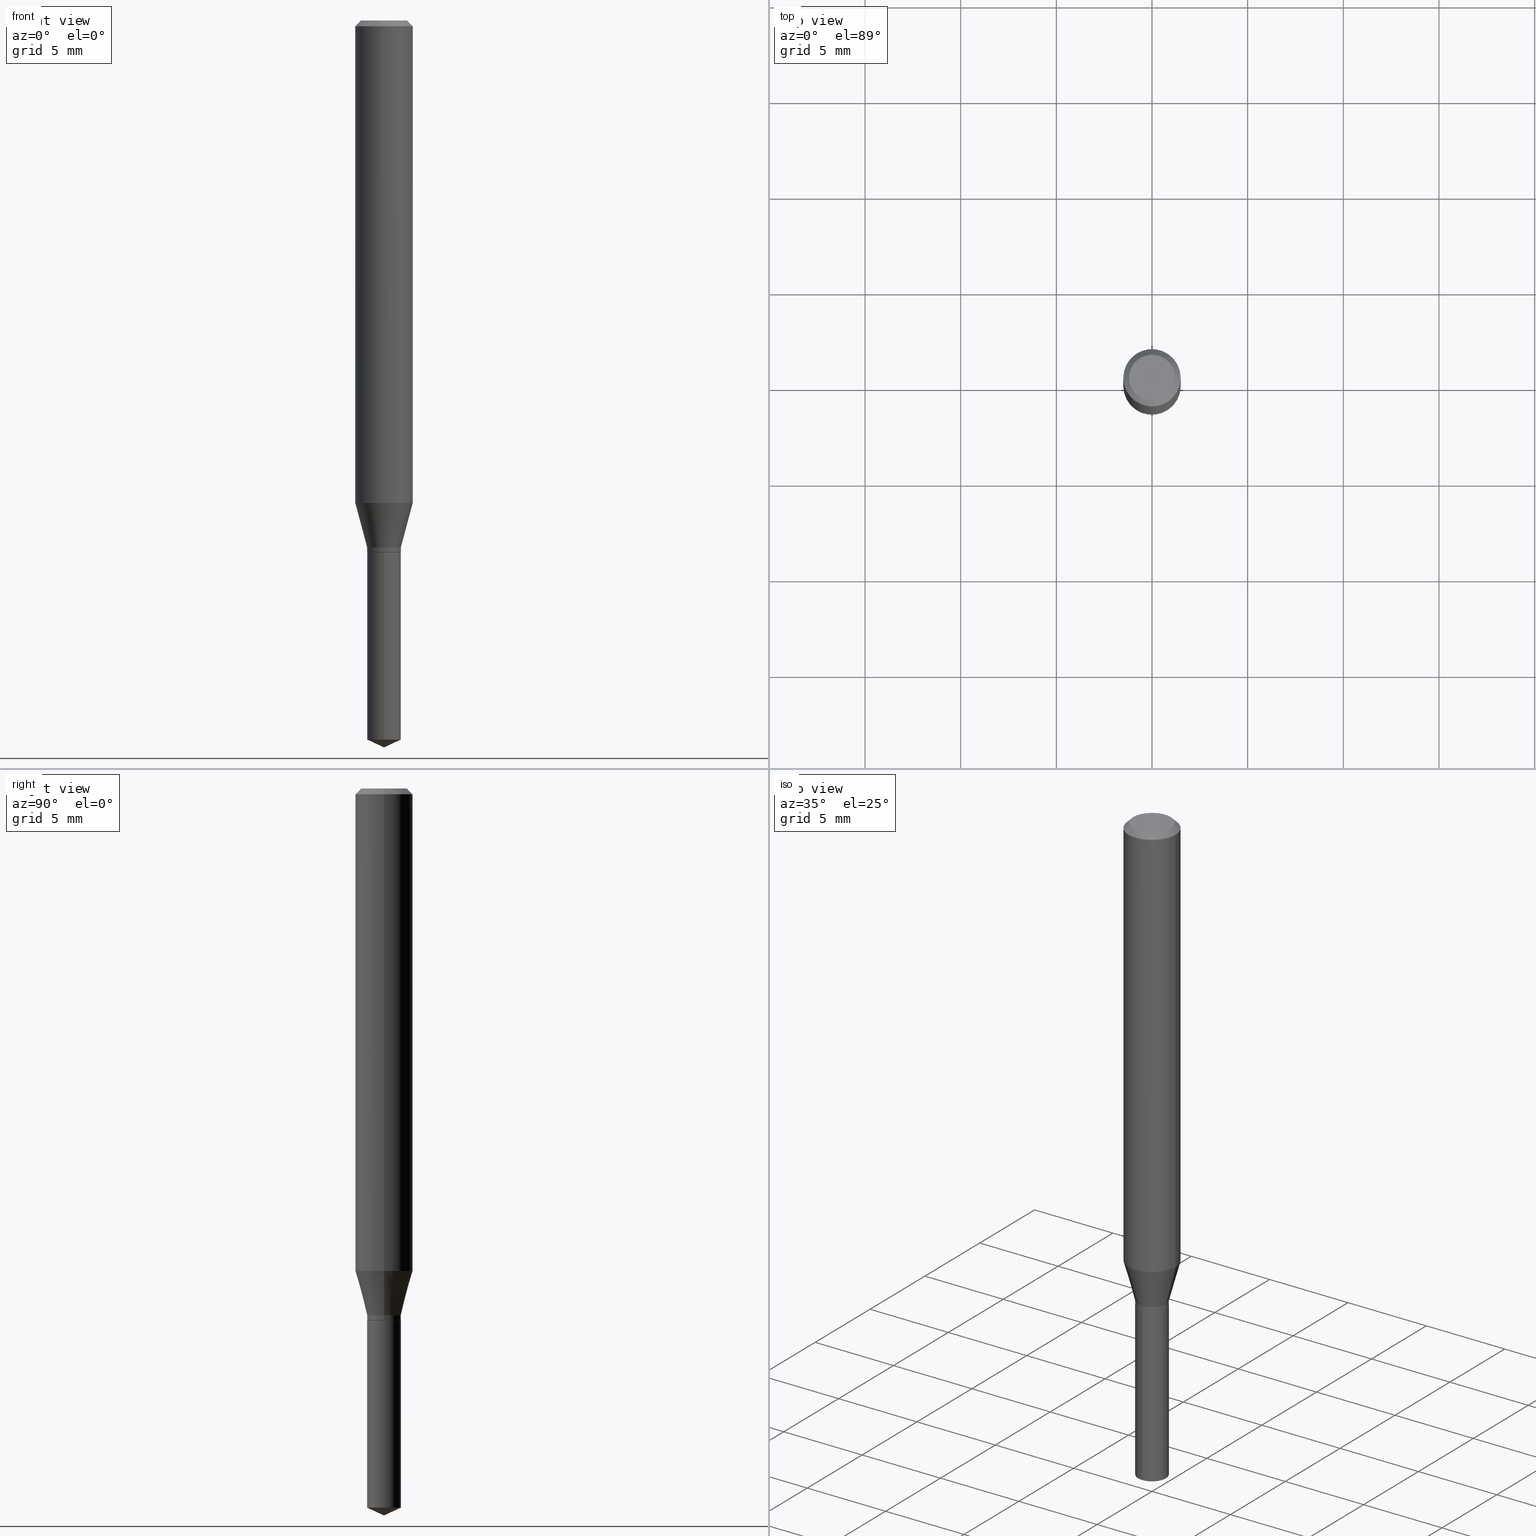
[diagram: canonical four-view strip — front | top / right | iso, engineering-drawing reading convention]
A machine part, canonical four-view strip (front | top / right | iso — engineering-drawing reading convention). The complete STEP part file that produces these views, byte-faithful:
ISO-10303-21;
HEADER;
FILE_DESCRIPTION (( 'STEP AP203' ),
    '1' );
FILE_NAME ('07572.STEP',
    '2024-04-23T23:08:33',
    ( '' ),
    ( '' ),
    'SwSTEP 2.0',
    'SolidWorks 2023',
    '' );
FILE_SCHEMA (( 'CONFIG_CONTROL_DESIGN' ));
ENDSEC;

DATA;
#1 = DIRECTION ( 'NONE',  ( 1.000000000000000000, -6.982962677686265922E-15, 4.876176775795935232E-29 ) ) ;
#2 = EDGE_CURVE ( 'NONE', #211, #374, #87, .T. ) ;
#3 = CARTESIAN_POINT ( 'NONE',  ( -0.05904999999999999832, -1.334628465406511892E-15, -0.01181000000000007218 ) ) ;
#4 = COORDINATED_UNIVERSAL_TIME_OFFSET ( 5, 0, .BEHIND. ) ;
#5 = ADVANCED_FACE ( 'NONE', ( #462 ), #370, .T. ) ;
#6 = ORIENTED_EDGE ( 'NONE', *, *, #182, .F. ) ;
#7 = PERSON_AND_ORGANIZATION ( #311, #459 ) ;
#8 = CARTESIAN_POINT ( 'NONE',  ( 8.265746106709734507E-48, -1.180129479067563789E-33, -3.380025165646692144E-19 ) ) ;
#9 = AXIS2_PLACEMENT_3D ( 'NONE', #210, #317, #471 ) ;
#10 = CONICAL_SURFACE ( 'NONE', #372, 0.03464999999999998637, 0.2617993877991499629 ) ;
#11 = DIRECTION ( 'NONE',  ( 1.000000000000000000, -6.982962677686264344E-15, 0.000000000000000000 ) ) ;
#12 = SECURITY_CLASSIFICATION_LEVEL ( 'unclassified' ) ;
#13 = VERTEX_POINT ( 'NONE', #457 ) ;
#14 = APPROVAL_ROLE ( '' ) ;
#15 = FACE_OUTER_BOUND ( 'NONE', #108, .T. ) ;
#16 = AXIS2_PLACEMENT_3D ( 'NONE', #221, #107, #68 ) ;
#17 = EDGE_CURVE ( 'NONE', #156, #222, #51, .T. ) ;
#18 = CARTESIAN_POINT ( 'NONE',  ( -0.05904999999999999832, 3.711095515056362547E-16, -0.01181000000000007218 ) ) ;
#19 = ORIENTED_EDGE ( 'NONE', *, *, #32, .F. ) ;
#20 = CARTESIAN_POINT ( 'NONE',  ( 0.03465000000000000024, -4.061640241476229553E-15, -1.093999999999999861 ) ) ;
#21 = FACE_OUTER_BOUND ( 'NONE', #34, .T. ) ;
#22 = EDGE_CURVE ( 'NONE', #216, #100, #290, .T. ) ;
#23 = DIRECTION ( 'NONE',  ( -6.982962677686266711E-15, -1.000000000000000000, 3.520397390770446770E-15 ) ) ;
#24 = CIRCLE ( 'NONE', #417, 0.05905000000000011628 ) ;
#25 = ADVANCED_FACE ( 'NONE', ( #228 ), #199, .T. ) ;
#26 = CARTESIAN_POINT ( 'NONE',  ( 3.658667988020872822E-29, -5.223602213574301462E-15, -1.496099999999999985 ) ) ;
#27 = ORIENTED_EDGE ( 'NONE', *, *, #94, .F. ) ;
#28 = CARTESIAN_POINT ( 'NONE',  ( 8.265746106709734507E-48, -1.180129479067563789E-33, -3.380025165646692144E-19 ) ) ;
#29 = EDGE_CURVE ( 'NONE', #294, #69, #119, .T. ) ;
#30 = ORIENTED_EDGE ( 'NONE', *, *, #396, .F. ) ;
#31 = DIRECTION ( 'NONE',  ( 1.000000000000000000, -6.982962677686266711E-15, 0.000000000000000000 ) ) ;
#32 = EDGE_CURVE ( 'NONE', #211, #222, #45, .T. ) ;
#33 = AXIS2_PLACEMENT_3D ( 'NONE', #475, #373, #146 ) ;
#34 = EDGE_LOOP ( 'NONE', ( #412, #323 ) ) ;
#35 = LINE ( 'NONE', #138, #126 ) ;
#36 = EDGE_LOOP ( 'NONE', ( #220, #422, #149 ) ) ;
#37 = PERSON_AND_ORGANIZATION ( #311, #459 ) ;
#38 = ORIENTED_EDGE ( 'NONE', *, *, #346, .F. ) ;
#39 = CYLINDRICAL_SURFACE ( 'NONE', #379, 0.03465000000000000024 ) ;
#40 = CIRCLE ( 'NONE', #161, 0.03464999999999998637 ) ;
#41 = DIRECTION ( 'NONE',  ( 1.000000000000000000, 0.000000000000000000, 0.000000000000000000 ) ) ;
#42 = DIRECTION ( 'NONE',  ( -6.982962677686265922E-15, -1.000000000000000000, 3.942060596918128599E-15 ) ) ;
#43 = DIRECTION ( 'NONE',  ( 1.000000000000000000, -6.982962677686264344E-15, 0.000000000000000000 ) ) ;
#44 = APPROVAL_DATE_TIME ( #386, #114 ) ;
#45 = LINE ( 'NONE', #225, #160 ) ;
#46 = CIRCLE ( 'NONE', #198, 0.05904999999999999832 ) ;
#47 = PERSON_AND_ORGANIZATION ( #311, #459 ) ;
#48 = DIRECTION ( 'NONE',  ( -2.445468806185136597E-29, 3.491481338843145583E-15, 1.000000000000000000 ) ) ;
#49 = PLANE ( 'NONE',  #143 ) ;
#50 = DIRECTION ( 'NONE',  ( -2.445468806185136877E-29, 3.491481338843145188E-15, 1.000000000000000000 ) ) ;
#51 = CIRCLE ( 'NONE', #393, 0.03464999999999998637 ) ;
#52 = AXIS2_PLACEMENT_3D ( 'NONE', #354, #355, #93 ) ;
#53 = DATE_TIME_ROLE ( 'classification_date' ) ;
#54 = ADVANCED_FACE ( 'NONE', ( #310 ), #39, .T. ) ;
#55 = SECURITY_CLASSIFICATION ( '', '', #12 ) ;
#56 = CARTESIAN_POINT ( 'NONE',  ( 0.000000000000000000, 0.000000000000000000, 0.000000000000000000 ) ) ;
#57 = DESIGN_CONTEXT ( 'detailed design', #431, 'design' ) ;
#58 = CARTESIAN_POINT ( 'NONE',  ( -0.05905000000000006077, 4.195754854663395916E-16, -2.904631170795524694E-30 ) ) ;
#59 = CYLINDRICAL_SURFACE ( 'NONE', #380, 0.05905000000000006077 ) ;
#60 = ORIENTED_EDGE ( 'NONE', *, *, #2, .F. ) ;
#61 = EDGE_CURVE ( 'NONE', #156, #251, #453, .T. ) ;
#62 = CARTESIAN_POINT ( 'NONE',  ( -0.03465000000000000024, -3.556194694126252781E-15, -1.093999999999999861 ) ) ;
#63 = AXIS2_PLACEMENT_3D ( 'NONE', #366, #296, #31 ) ;
#64 = ORIENTED_EDGE ( 'NONE', *, *, #365, .F. ) ;
#65 = DIRECTION ( 'NONE',  ( -2.445470214571802116E-29, 3.491479321953280158E-15, 1.000000000000000000 ) ) ;
#66 = EDGE_LOOP ( 'NONE', ( #171, #409, #27 ) ) ;
#67 = EDGE_CURVE ( 'NONE', #297, #115, #168, .T. ) ;
#68 = DIRECTION ( 'NONE',  ( 1.000000000000000000, -6.982962677686265922E-15, 4.876176775795935232E-29 ) ) ;
#69 = VERTEX_POINT ( 'NONE', #455 ) ;
#70 = CARTESIAN_POINT ( 'NONE',  ( 0.05904999999999999832, -4.463468013801466955E-16, -0.01181000000000007218 ) ) ;
#71 = ORIENTED_EDGE ( 'NONE', *, *, #67, .T. ) ;
#72 = DIRECTION ( 'NONE',  ( -2.445468806185136597E-29, 3.491481338843145583E-15, 1.000000000000000000 ) ) ;
#73 = ORIENTED_EDGE ( 'NONE', *, *, #17, .T. ) ;
#74 = DIRECTION ( 'NONE',  ( -0.2588190451025212391, 5.211531920934549464E-15, 0.9659258262890679791 ) ) ;
#75 = APPROVAL_ROLE ( '' ) ;
#76 = DIRECTION ( 'NONE',  ( -2.445468806185136597E-29, 3.491481338843145583E-15, 1.000000000000000000 ) ) ;
#77 = CIRCLE ( 'NONE', #141, 0.03465000000000000024 ) ;
#78 = CIRCLE ( 'NONE', #152, 0.03465000000000000024 ) ;
#79 = EDGE_CURVE ( 'NONE', #374, #211, #77, .T. ) ;
#80 = CALENDAR_DATE ( 2024, 23, 4 ) ;
#81 = ORIENTED_EDGE ( 'NONE', *, *, #263, .F. ) ;
#82 = COORDINATED_UNIVERSAL_TIME_OFFSET ( 5, 0, .BEHIND. ) ;
#83 = APPROVAL ( #202, 'UNSPECIFIED' ) ;
#84 = CARTESIAN_POINT ( 'NONE',  ( 2.676565608369632355E-29, -3.821426325363822773E-15, -1.094500000000000028 ) ) ;
#85 = DIRECTION ( 'NONE',  ( -2.445468806185136597E-29, 3.491481338843145583E-15, 1.000000000000000000 ) ) ;
#86 = DIRECTION ( 'NONE',  ( 2.445468806185136597E-29, -3.491481338843145583E-15, -1.000000000000000000 ) ) ;
#87 = CIRCLE ( 'NONE', #465, 0.03465000000000000024 ) ;
#88 = CIRCLE ( 'NONE', #120, 0.03465000000000000024 ) ;
#89 = LOCAL_TIME ( 19, 8, 33.00000000000000000, #324 ) ;
#90 = CARTESIAN_POINT ( 'NONE',  ( 0.05904999999999999832, -4.535783407291118600E-16, -0.01181000000000007218 ) ) ;
#91 = CARTESIAN_POINT ( 'NONE',  ( -0.03464999999999999331, 2.462030579408746668E-16, -1.704411008773324544E-30 ) ) ;
#92 = DATE_AND_TIME ( #164, #473 ) ;
#93 = DIRECTION ( 'NONE',  ( 1.000000000000000000, -6.982962677686262766E-15, 0.000000000000000000 ) ) ;
#94 = EDGE_CURVE ( 'NONE', #249, #385, #478, .T. ) ;
#95 = CC_DESIGN_SECURITY_CLASSIFICATION ( #55, ( #112 ) ) ;
#96 = DIRECTION ( 'NONE',  ( 1.000000000000000000, -6.982962677686266711E-15, 4.876176775795935793E-29 ) ) ;
#97 = CC_DESIGN_DATE_AND_TIME_ASSIGNMENT ( #92, #53, ( #55 ) ) ;
#98 = DIRECTION ( 'NONE',  ( -2.445468806185136877E-29, 3.491481338843145188E-15, 1.000000000000000000 ) ) ;
#99 = CARTESIAN_POINT ( 'NONE',  ( -0.03414999999999999980, -3.578775981101748463E-15, -1.094500000000000028 ) ) ;
#100 = VERTEX_POINT ( 'NONE', #3 ) ;
#101 = DIRECTION ( 'NONE',  ( -1.000000000000000000, 6.982962677686266711E-15, 0.000000000000000000 ) ) ;
#102 = ORIENTED_EDGE ( 'NONE', *, *, #384, .T. ) ;
#103 = ADVANCED_FACE ( 'NONE', ( #304 ), #212, .T. ) ;
#104 = DIMENSIONAL_EXPONENTS ( 1.000000000000000000, 0.000000000000000000, 0.000000000000000000, 0.000000000000000000, 0.000000000000000000, 0.000000000000000000, 0.000000000000000000 ) ;
#105 = DIRECTION ( 'NONE',  ( -2.445468806185136597E-29, 3.491481338843145583E-15, 1.000000000000000000 ) ) ;
#106 = ORIENTED_EDGE ( 'NONE', *, *, #458, .F. ) ;
#107 = DIRECTION ( 'NONE',  ( -2.445468806185136597E-29, 3.491481338843145583E-15, 1.000000000000000000 ) ) ;
#108 = EDGE_LOOP ( 'NONE', ( #476, #194, #404, #438 ) ) ;
#109 = DIRECTION ( 'NONE',  ( -2.445468806185136597E-29, 3.491481338843145583E-15, 1.000000000000000000 ) ) ;
#110 = AXIS2_PLACEMENT_3D ( 'NONE', #215, #185, #23 ) ;
#111 = ORIENTED_EDGE ( 'NONE', *, *, #263, .T. ) ;
#112 = PRODUCT_DEFINITION_FORMATION_WITH_SPECIFIED_SOURCE ( 'ANY', '', #292, .NOT_KNOWN. ) ;
#113 = CYLINDRICAL_SURFACE ( 'NONE', #291, 0.03464999999999999331 ) ;
#114 = APPROVAL ( #269, 'UNSPECIFIED' ) ;
#115 = VERTEX_POINT ( 'NONE', #392 ) ;
#116 = ORIENTED_EDGE ( 'NONE', *, *, #384, .F. ) ;
#117 = PERSON_AND_ORGANIZATION_ROLE ( 'design_owner' ) ;
#118 = CARTESIAN_POINT ( 'NONE',  ( 2.651132732785306232E-29, -3.785114919439853921E-15, -1.084099999999999842 ) ) ;
#119 = CIRCLE ( 'NONE', #423, 0.04724000000000000421 ) ;
#120 = AXIS2_PLACEMENT_3D ( 'NONE', #180, #331, #293 ) ;
#121 = EDGE_CURVE ( 'NONE', #13, #216, #327, .T. ) ;
#122 = APPROVAL_STATUS ( 'not_yet_approved' ) ;
#123 = DIRECTION ( 'NONE',  ( 1.000000000000000000, -6.982962677686262766E-15, 0.000000000000000000 ) ) ;
#124 = DIRECTION ( 'NONE',  ( -6.982962677686265922E-15, -1.000000000000000000, 0.000000000000000000 ) ) ;
#125 = LINE ( 'NONE', #243, #177 ) ;
#126 = VECTOR ( 'NONE', #288, 39.37007874015748143 ) ;
#127 = LOCAL_TIME ( 19, 8, 33.00000000000000000, #82 ) ;
#128 = DIRECTION ( 'NONE',  ( -2.445470214571802116E-29, 3.491479321953280158E-15, 1.000000000000000000 ) ) ;
#129 = CC_DESIGN_DATE_AND_TIME_ASSIGNMENT ( #488, #227, ( #173 ) ) ;
#130 = ORIENTED_EDGE ( 'NONE', *, *, #458, .T. ) ;
#131 = CARTESIAN_POINT ( 'NONE',  ( 0.03464999999999998637, -4.027074576221682993E-15, -1.084099999999999842 ) ) ;
#132 = DATE_AND_TIME ( #281, #89 ) ;
#133 = PLANE ( 'NONE',  #255 ) ;
#134 = ADVANCED_FACE ( 'NONE', ( #15 ), #59, .T. ) ;
#135 = AXIS2_PLACEMENT_3D ( 'NONE', #408, #335, #101 ) ;
#136 = CARTESIAN_POINT ( 'NONE',  ( 3.658668015054778287E-29, -5.223602213574301462E-15, -1.496099999999999985 ) ) ;
#137 = DIRECTION ( 'NONE',  ( 0.7071067811865453523, -7.319954787623248157E-15, -0.7071067811865496822 ) ) ;
#138 = CARTESIAN_POINT ( 'NONE',  ( 2.462030579409014388E-16, 0.03464999999999618385, -1.094500000000000028 ) ) ;
#139 = EDGE_LOOP ( 'NONE', ( #30, #489, #245, #218 ) ) ;
#140 = AXIS2_PLACEMENT_3D ( 'NONE', #163, #313, #124 ) ;
#141 = AXIS2_PLACEMENT_3D ( 'NONE', #192, #344, #11 ) ;
#142 = DIRECTION ( 'NONE',  ( 1.000000000000000000, -6.982962677686266711E-15, 4.876176775795935793E-29 ) ) ;
#143 = AXIS2_PLACEMENT_3D ( 'NONE', #466, #436, #314 ) ;
#144 = ORIENTED_EDGE ( 'NONE', *, *, #206, .F. ) ;
#145 = EDGE_CURVE ( 'NONE', #385, #249, #78, .T. ) ;
#146 = DIRECTION ( 'NONE',  ( -6.982962677686265922E-15, -1.000000000000000000, 3.942060596918128599E-15 ) ) ;
#147 = ORIENTED_EDGE ( 'NONE', *, *, #182, .T. ) ;
#148 = DIRECTION ( 'NONE',  ( 0.7071067811864237829, -2.468850131080960568E-15, 0.7071067811866712516 ) ) ;
#149 = ORIENTED_EDGE ( 'NONE', *, *, #145, .F. ) ;
#150 = EDGE_CURVE ( 'NONE', #374, #156, #397, .T. ) ;
#151 = AXIS2_PLACEMENT_3D ( 'NONE', #388, #413, #195 ) ;
#152 = AXIS2_PLACEMENT_3D ( 'NONE', #201, #128, #234 ) ;
#153 = ORIENTED_EDGE ( 'NONE', *, *, #61, .T. ) ;
#154 = EDGE_LOOP ( 'NONE', ( #441, #73, #147, #64 ) ) ;
#155 = CALENDAR_DATE ( 2024, 23, 4 ) ;
#156 = VERTEX_POINT ( 'NONE', #278 ) ;
#157 = ADVANCED_FACE ( 'NONE', ( #167 ), #410, .T. ) ;
#158 = MANIFOLD_SOLID_BREP ( 'Body-Move/Copy2[1]', #300 ) ;
#159 = DIRECTION ( 'NONE',  ( -2.445468806185136597E-29, 3.491481338843145583E-15, 1.000000000000000000 ) ) ;
#160 = VECTOR ( 'NONE', #231, 39.37007874015748143 ) ;
#161 = AXIS2_PLACEMENT_3D ( 'NONE', #435, #172, #242 ) ;
#162 = PERSON_AND_ORGANIZATION ( #311, #459 ) ;
#163 = CARTESIAN_POINT ( 'NONE',  ( 3.619153613953196531E-29, -5.167190633187319262E-15, -1.479942439644929220 ) ) ;
#164 = CALENDAR_DATE ( 2024, 23, 4 ) ;
#165 = CARTESIAN_POINT ( 'NONE',  ( -0.04724000000000000421, 3.504923541997677355E-16, -3.380025165670481712E-19 ) ) ;
#166 = EDGE_CURVE ( 'NONE', #222, #156, #40, .T. ) ;
#167 = FACE_OUTER_BOUND ( 'NONE', #389, .T. ) ;
#168 = CIRCLE ( 'NONE', #440, 0.03414999999999999980 ) ;
#169 = VECTOR ( 'NONE', #240, 39.37007874015748143 ) ;
#170 = DIRECTION ( 'NONE',  ( -1.000000000000000000, 6.982962677686266711E-15, 0.000000000000000000 ) ) ;
#171 = ORIENTED_EDGE ( 'NONE', *, *, #286, .F. ) ;
#172 = DIRECTION ( 'NONE',  ( -2.445468806185136597E-29, 3.491481338843145583E-15, 1.000000000000000000 ) ) ;
#173 = PRODUCT_DEFINITION ( 'UNKNOWN', '', #112, #57 ) ;
#174 = MANIFOLD_SOLID_BREP ( 'Body-Move/Copy2[2]', #232 ) ;
#175 = PLANE ( 'NONE',  #9 ) ;
#176 = EDGE_LOOP ( 'NONE', ( #468, #484, #299, #19 ) ) ;
#177 = VECTOR ( 'NONE', #326, 39.37007874015748854 ) ;
#178 = CC_DESIGN_APPROVAL ( #485, ( #173 ) ) ;
#179 = FACE_OUTER_BOUND ( 'NONE', #36, .T. ) ;
#180 = CARTESIAN_POINT ( 'NONE',  ( 2.676565608369631794E-29, -3.821426325363822773E-15, -1.094499999999999806 ) ) ;
#181 = VERTEX_POINT ( 'NONE', #426 ) ;
#182 = EDGE_CURVE ( 'NONE', #222, #13, #125, .T. ) ;
#183 = CARTESIAN_POINT ( 'NONE',  ( 2.676565608369632355E-29, -3.821426325363822773E-15, -1.094500000000000028 ) ) ;
#184 = EDGE_LOOP ( 'NONE', ( #364, #338, #257, #289 ) ) ;
#185 = DIRECTION ( 'NONE',  ( -2.445470214571802116E-29, 3.491479321953280158E-15, 1.000000000000000000 ) ) ;
#186 = ORIENTED_EDGE ( 'NONE', *, *, #17, .F. ) ;
#187 = CARTESIAN_POINT ( 'NONE',  ( 2.651132732785306232E-29, -3.785114919439853921E-15, -1.084099999999999842 ) ) ;
#188 = ORIENTED_EDGE ( 'NONE', *, *, #121, .T. ) ;
#189 = EDGE_CURVE ( 'NONE', #294, #100, #203, .T. ) ;
#190 = EDGE_LOOP ( 'NONE', ( #375, #361 ) ) ;
#191 = CONICAL_SURFACE ( 'NONE', #204, 84.42940631927450568, 1.134464013796316673 ) ;
#192 = CARTESIAN_POINT ( 'NONE',  ( 2.675342873966538993E-29, -3.819680584694400481E-15, -1.093999999999999861 ) ) ;
#193 =( NAMED_UNIT ( * ) PLANE_ANGLE_UNIT ( ) SI_UNIT ( $, .RADIAN. ) );
#194 = ORIENTED_EDGE ( 'NONE', *, *, #206, .T. ) ;
#195 = DIRECTION ( 'NONE',  ( -6.982962677686265922E-15, -1.000000000000000000, 3.942060596918128599E-15 ) ) ;
#196 = PERSON_AND_ORGANIZATION ( #311, #459 ) ;
#197 = ORIENTED_EDGE ( 'NONE', *, *, #32, .T. ) ;
#198 = AXIS2_PLACEMENT_3D ( 'NONE', #256, #328, #213 ) ;
#199 = CYLINDRICAL_SURFACE ( 'NONE', #151, 0.03465000000000000024 ) ;
#200 = APPROVAL_DATE_TIME ( #132, #83 ) ;
#201 = CARTESIAN_POINT ( 'NONE',  ( 3.619153613953196531E-29, -5.167190633187319262E-15, -1.479942439644929220 ) ) ;
#202 = APPROVAL_STATUS ( 'not_yet_approved' ) ;
#203 = LINE ( 'NONE', #18, #451 ) ;
#204 = AXIS2_PLACEMENT_3D ( 'NONE', #446, #65, #444 ) ;
#205 = AXIS2_PLACEMENT_3D ( 'NONE', #183, #109, #437 ) ;
#206 = EDGE_CURVE ( 'NONE', #251, #100, #470, .T. ) ;
#207 = CARTESIAN_POINT ( 'NONE',  ( -0.05905000000000011628, -3.047598021667626732E-15, -0.9930379602953189888 ) ) ;
#208 = FACE_OUTER_BOUND ( 'NONE', #190, .T. ) ;
#209 = APPLICATION_CONTEXT ( 'configuration controlled 3d designs of mechanical parts and assemblies' ) ;
#210 = CARTESIAN_POINT ( 'NONE',  ( 2.676565608369631794E-29, -3.821426325363822773E-15, -1.094499999999999806 ) ) ;
#211 = VERTEX_POINT ( 'NONE', #20 ) ;
#212 = CONICAL_SURFACE ( 'NONE', #472, 0.05904999999999999832, 0.7853981633974452814 ) ;
#213 = DIRECTION ( 'NONE',  ( 1.000000000000000000, -6.982962677686266711E-15, 0.000000000000000000 ) ) ;
#214 = EDGE_LOOP ( 'NONE', ( #330, #347, #197, #186 ) ) ;
#215 = CARTESIAN_POINT ( 'NONE',  ( -9.261968845786000133E-28, 1.322362114038720264E-13, 37.87397874015748300 ) ) ;
#216 = VERTEX_POINT ( 'NONE', #90 ) ;
#217 = LINE ( 'NONE', #486, #241 ) ;
#218 = ORIENTED_EDGE ( 'NONE', *, *, #307, .T. ) ;
#219 = CARTESIAN_POINT ( 'NONE',  ( 0.000000000000000000, 0.000000000000000000, 0.000000000000000000 ) ) ;
#220 = ORIENTED_EDGE ( 'NONE', *, *, #226, .F. ) ;
#221 = CARTESIAN_POINT ( 'NONE',  ( 0.000000000000000000, 0.000000000000000000, 0.000000000000000000 ) ) ;
#222 = VERTEX_POINT ( 'NONE', #131 ) ;
#223 = ORIENTED_EDGE ( 'NONE', *, *, #463, .F. ) ;
#224 = DIRECTION ( 'NONE',  ( -2.445468806185136597E-29, 3.491481338843145583E-15, 1.000000000000000000 ) ) ;
#225 = CARTESIAN_POINT ( 'NONE',  ( 0.03464999999999999331, -2.419596567818290721E-16, 1.689595252813291315E-30 ) ) ;
#226 = EDGE_CURVE ( 'NONE', #367, #385, #279, .T. ) ;
#227 = DATE_TIME_ROLE ( 'creation_date' ) ;
#228 = FACE_OUTER_BOUND ( 'NONE', #399, .T. ) ;
#229 = CALENDAR_DATE ( 2024, 23, 4 ) ;
#230 = CARTESIAN_POINT ( 'NONE',  ( 2.675342873966538993E-29, -3.819680584694400481E-15, -1.093999999999999861 ) ) ;
#231 = DIRECTION ( 'NONE',  ( -2.445468806185136877E-29, 3.491481338843145188E-15, 1.000000000000000000 ) ) ;
#232 = CLOSED_SHELL ( 'NONE', ( #5, #376, #134, #481, #469, #448, #442, #416, #103, #246, #295, #157 ) ) ;
#233 = APPROVAL_PERSON_ORGANIZATION ( #348, #114, #420 ) ;
#234 = DIRECTION ( 'NONE',  ( -6.982962677686265922E-15, -1.000000000000000000, 0.000000000000000000 ) ) ;
#235 = PERSON_AND_ORGANIZATION_ROLE ( 'classification_officer' ) ;
#236 = CARTESIAN_POINT ( 'NONE',  ( -2.419596567818023494E-16, -0.03465000000000382357, -1.094499999999999806 ) ) ;
#237 = ORIENTED_EDGE ( 'NONE', *, *, #365, .T. ) ;
#238 = CC_DESIGN_PERSON_AND_ORGANIZATION_ASSIGNMENT ( #418, #339, ( #173 ) ) ;
#239 = PERSON_AND_ORGANIZATION ( #311, #459 ) ;
#240 = DIRECTION ( 'NONE',  ( -6.328713451373378056E-15, -0.9063077870366496036, 0.4226182617407003850 ) ) ;
#241 = VECTOR ( 'NONE', #148, 39.37007874015748143 ) ;
#242 = DIRECTION ( 'NONE',  ( 1.000000000000000000, -6.982962677686267499E-15, 0.000000000000000000 ) ) ;
#243 = CARTESIAN_POINT ( 'NONE',  ( 0.03464999999999998637, -4.027074576221682993E-15, -1.084099999999999842 ) ) ;
#244 = FACE_OUTER_BOUND ( 'NONE', #480, .T. ) ;
#245 = ORIENTED_EDGE ( 'NONE', *, *, #189, .T. ) ;
#246 = ADVANCED_FACE ( 'NONE', ( #208 ), #133, .F. ) ;
#247 = CONICAL_SURFACE ( 'NONE', #395, 0.03464999999999998637, 0.2617993877991499629 ) ;
#248 = CARTESIAN_POINT ( 'NONE',  ( -2.419596567817929817E-16, -0.03465000000000517666, -1.479942439644929220 ) ) ;
#249 = VERTEX_POINT ( 'NONE', #321 ) ;
#250 = DIRECTION ( 'NONE',  ( 1.000000000000000000, -6.982962677686267499E-15, 0.000000000000000000 ) ) ;
#251 = VERTEX_POINT ( 'NONE', #207 ) ;
#252 = CC_DESIGN_PERSON_AND_ORGANIZATION_ASSIGNMENT ( #47, #235, ( #55 ) ) ;
#253 = CARTESIAN_POINT ( 'NONE',  ( 2.428443355259917154E-29, -3.467173507133967014E-15, -0.9930379602953189888 ) ) ;
#254 = ORIENTED_EDGE ( 'NONE', *, *, #359, .F. ) ;
#255 = AXIS2_PLACEMENT_3D ( 'NONE', #398, #428, #394 ) ;
#256 = CARTESIAN_POINT ( 'NONE',  ( 2.888098660104664204E-31, -4.123439461173780263E-17, -0.01181000000000007218 ) ) ;
#257 = ORIENTED_EDGE ( 'NONE', *, *, #22, .T. ) ;
#258 = ADVANCED_BREP_SHAPE_REPRESENTATION ( '07572', ( #158, #174, #402 ), #277 ) ;
#259 = CARTESIAN_POINT ( 'NONE',  ( 2.651132732785306232E-29, -3.785114919439853921E-15, -1.084099999999999842 ) ) ;
#260 = CARTESIAN_POINT ( 'NONE',  ( 2.888098660104664204E-31, -4.123439461173780263E-17, -0.01181000000000007218 ) ) ;
#261 = APPLICATION_PROTOCOL_DEFINITION ( 'international standard', 'config_control_design', 1994, #431 ) ;
#262 = DIRECTION ( 'NONE',  ( -2.445468806185136597E-29, 3.491481338843145583E-15, 1.000000000000000000 ) ) ;
#263 = EDGE_CURVE ( 'NONE', #385, #181, #358, .T. ) ;
#264 = VECTOR ( 'NONE', #50, 39.37007874015748143 ) ;
#265 = DATE_AND_TIME ( #155, #362 ) ;
#266 = CIRCLE ( 'NONE', #205, 0.03414999999999999980 ) ;
#267 = DIRECTION ( 'NONE',  ( 1.000000000000000000, -6.982962677686267499E-15, 0.000000000000000000 ) ) ;
#268 = CC_DESIGN_APPROVAL ( #83, ( #55 ) ) ;
#269 = APPROVAL_STATUS ( 'not_yet_approved' ) ;
#270 = DIRECTION ( 'NONE',  ( -2.445468806185136597E-29, 3.491481338843145583E-15, 1.000000000000000000 ) ) ;
#271 = APPLICATION_PROTOCOL_DEFINITION ( 'international standard', 'config_control_design', 1994, #209 ) ;
#272 = ADVANCED_FACE ( 'NONE', ( #21 ), #175, .F. ) ;
#273 = CARTESIAN_POINT ( 'NONE',  ( 2.888098660104664204E-31, -4.123439461173780263E-17, -0.01181000000000007218 ) ) ;
#274 = DIRECTION ( 'NONE',  ( -2.445470214571802396E-29, 3.491479321953280158E-15, 1.000000000000000000 ) ) ;
#275 = AXIS2_PLACEMENT_3D ( 'NONE', #84, #262, #306 ) ;
#276 = CIRCLE ( 'NONE', #63, 0.05905000000000011628 ) ;
#277 =( GEOMETRIC_REPRESENTATION_CONTEXT ( 3 ) GLOBAL_UNCERTAINTY_ASSIGNED_CONTEXT ( ( #387 ) ) GLOBAL_UNIT_ASSIGNED_CONTEXT ( ( #456, #193, #377 ) ) REPRESENTATION_CONTEXT ( 'NONE', 'WORKASPACE' ) );
#278 = CARTESIAN_POINT ( 'NONE',  ( -0.03464999999999998637, -3.556194694126252781E-15, -1.084099999999999842 ) ) ;
#279 = LINE ( 'NONE', #464, #169 ) ;
#280 = EDGE_LOOP ( 'NONE', ( #429, #153, #254, #6 ) ) ;
#281 = CALENDAR_DATE ( 2024, 23, 4 ) ;
#282 = DIRECTION ( 'NONE',  ( -0.7071067811865453523, 2.468850131082234184E-15, -0.7071067811865496822 ) ) ;
#283 = VECTOR ( 'NONE', #400, 39.37007874015748143 ) ;
#284 = APPROVAL_PERSON_ORGANIZATION ( #239, #83, #14 ) ;
#285 = DIRECTION ( 'NONE',  ( 6.439704144417031142E-15, 0.9063077870366524902, 0.4226182617406940567 ) ) ;
#286 = EDGE_CURVE ( 'NONE', #367, #249, #360, .T. ) ;
#287 = LINE ( 'NONE', #99, #283 ) ;
#288 = DIRECTION ( 'NONE',  ( -2.445470214571802396E-29, 3.491479321953280158E-15, 1.000000000000000000 ) ) ;
#289 = ORIENTED_EDGE ( 'NONE', *, *, #189, .F. ) ;
#290 = CIRCLE ( 'NONE', #341, 0.05904999999999999832 ) ;
#291 = AXIS2_PLACEMENT_3D ( 'NONE', #460, #85, #1 ) ;
#292 = PRODUCT ( '07572', '07572', '', ( #303 ) ) ;
#293 = DIRECTION ( 'NONE',  ( -6.982962677686265922E-15, -1.000000000000000000, 3.942060596918128599E-15 ) ) ;
#294 = VERTEX_POINT ( 'NONE', #165 ) ;
#295 = ADVANCED_FACE ( 'NONE', ( #390 ), #49, .F. ) ;
#296 = DIRECTION ( 'NONE',  ( -2.445468806185136597E-29, 3.491481338843145583E-15, 1.000000000000000000 ) ) ;
#297 = VERTEX_POINT ( 'NONE', #403 ) ;
#298 = FACE_OUTER_BOUND ( 'NONE', #184, .T. ) ;
#299 = ORIENTED_EDGE ( 'NONE', *, *, #166, .F. ) ;
#300 = CLOSED_SHELL ( 'NONE', ( #54, #430, #322, #25, #272 ) ) ;
#301 = VECTOR ( 'NONE', #137, 39.37007874015748143 ) ;
#302 = EDGE_LOOP ( 'NONE', ( #71, #407, #60, #106 ) ) ;
#303 = MECHANICAL_CONTEXT ( 'NONE', #209, 'mechanical' ) ;
#304 = FACE_OUTER_BOUND ( 'NONE', #139, .T. ) ;
#305 = COORDINATED_UNIVERSAL_TIME_OFFSET ( 5, 0, .BEHIND. ) ;
#306 = DIRECTION ( 'NONE',  ( 1.000000000000000000, -6.982962677686262766E-15, 0.000000000000000000 ) ) ;
#307 = EDGE_CURVE ( 'NONE', #100, #216, #46, .T. ) ;
#308 = FACE_OUTER_BOUND ( 'NONE', #280, .T. ) ;
#309 = AXIS2_PLACEMENT_3D ( 'NONE', #219, #477, #142 ) ;
#310 = FACE_OUTER_BOUND ( 'NONE', #450, .T. ) ;
#311 = PERSON ( 'UNSPECIFIED', 'UNSPECIFIED', 'UNSPECIFIED', ('UNSPECIFIED'), ('UNSPECIFIED'), ('UNSPECIFIED') ) ;
#312 = DIRECTION ( 'NONE',  ( 0.000000000000000000, 0.000000000000000000, 1.000000000000000000 ) ) ;
#313 = DIRECTION ( 'NONE',  ( -2.445470214571802116E-29, 3.491479321953280158E-15, 1.000000000000000000 ) ) ;
#314 = DIRECTION ( 'NONE',  ( 1.000000000000000000, -6.982962677686265922E-15, 4.876176775795935793E-29 ) ) ;
#315 = PERSON_AND_ORGANIZATION_ROLE ( 'design_supplier' ) ;
#316 = EDGE_CURVE ( 'NONE', #447, #181, #334, .T. ) ;
#317 = DIRECTION ( 'NONE',  ( 2.445470214571801836E-29, -3.491479321953280158E-15, -1.000000000000000000 ) ) ;
#318 = VECTOR ( 'NONE', #74, 39.37007874015748854 ) ;
#319 = CONICAL_SURFACE ( 'NONE', #135, 0.05904999999999999832, 0.7853981633974452814 ) ;
#320 = LOCAL_TIME ( 19, 8, 33.00000000000000000, #305 ) ;
#321 = CARTESIAN_POINT ( 'NONE',  ( 2.462030579409109051E-16, 0.03464999999999483771, -1.479942439644929220 ) ) ;
#322 = ADVANCED_FACE ( 'NONE', ( #449 ), #479, .T. ) ;
#323 = ORIENTED_EDGE ( 'NONE', *, *, #316, .T. ) ;
#324 = COORDINATED_UNIVERSAL_TIME_OFFSET ( 5, 0, .BEHIND. ) ;
#325 = PRODUCT_DEFINITION_SHAPE ( 'NONE', 'NONE',  #173 ) ;
#326 = DIRECTION ( 'NONE',  ( 0.2588190451025212391, 1.565188264969622362E-15, 0.9659258262890679791 ) ) ;
#327 = LINE ( 'NONE', #432, #264 ) ;
#328 = DIRECTION ( 'NONE',  ( -2.445468806185136597E-29, 3.491481338843145583E-15, 1.000000000000000000 ) ) ;
#329 = CYLINDRICAL_SURFACE ( 'NONE', #309, 0.05905000000000006077 ) ;
#330 = ORIENTED_EDGE ( 'NONE', *, *, #150, .F. ) ;
#331 = DIRECTION ( 'NONE',  ( -2.445470214571802116E-29, 3.491479321953280158E-15, 1.000000000000000000 ) ) ;
#332 = CC_DESIGN_PERSON_AND_ORGANIZATION_ASSIGNMENT ( #37, #117, ( #292 ) ) ;
#333 = ORIENTED_EDGE ( 'NONE', *, *, #307, .F. ) ;
#334 = CIRCLE ( 'NONE', #33, 0.03465000000000000024 ) ;
#335 = DIRECTION ( 'NONE',  ( 2.445468806185136597E-29, -3.491481338843145583E-15, -1.000000000000000000 ) ) ;
#336 = ORIENTED_EDGE ( 'NONE', *, *, #67, .F. ) ;
#337 = FACE_OUTER_BOUND ( 'NONE', #214, .T. ) ;
#338 = ORIENTED_EDGE ( 'NONE', *, *, #396, .T. ) ;
#339 = PERSON_AND_ORGANIZATION_ROLE ( 'creator' ) ;
#340 = EDGE_LOOP ( 'NONE', ( #336, #116 ) ) ;
#341 = AXIS2_PLACEMENT_3D ( 'NONE', #260, #48, #415 ) ;
#342 = VECTOR ( 'NONE', #274, 39.37007874015748143 ) ;
#343 = CARTESIAN_POINT ( 'NONE',  ( 0.000000000000000000, 0.000000000000000000, 0.000000000000000000 ) ) ;
#344 = DIRECTION ( 'NONE',  ( -2.445468806185136597E-29, 3.491481338843145583E-15, 1.000000000000000000 ) ) ;
#345 = FACE_OUTER_BOUND ( 'NONE', #176, .T. ) ;
#346 = EDGE_CURVE ( 'NONE', #249, #447, #35, .T. ) ;
#347 = ORIENTED_EDGE ( 'NONE', *, *, #79, .T. ) ;
#348 = PERSON_AND_ORGANIZATION ( #311, #459 ) ;
#349 = ORIENTED_EDGE ( 'NONE', *, *, #145, .T. ) ;
#350 = EDGE_CURVE ( 'NONE', #69, #294, #490, .T. ) ;
#351 = PERSON_AND_ORGANIZATION_ROLE ( 'creator' ) ;
#352 = CARTESIAN_POINT ( 'NONE',  ( 2.676565608369632355E-29, -3.821426325363822773E-15, -1.094500000000000028 ) ) ;
#353 = DIRECTION ( 'NONE',  ( -2.445470214571802116E-29, 3.491479321953280158E-15, 1.000000000000000000 ) ) ;
#354 = CARTESIAN_POINT ( 'NONE',  ( 2.676565608369632355E-29, -3.821426325363822773E-15, -1.094500000000000028 ) ) ;
#355 = DIRECTION ( 'NONE',  ( -2.445468806185136597E-29, 3.491481338843145583E-15, 1.000000000000000000 ) ) ;
#356 = VECTOR ( 'NONE', #357, 39.37007874015748143 ) ;
#357 = DIRECTION ( 'NONE',  ( -2.445468806185136877E-29, 3.491481338843145188E-15, 1.000000000000000000 ) ) ;
#358 = LINE ( 'NONE', #236, #342 ) ;
#359 = EDGE_CURVE ( 'NONE', #13, #251, #24, .T. ) ;
#360 = LINE ( 'NONE', #136, #443 ) ;
#361 = ORIENTED_EDGE ( 'NONE', *, *, #350, .T. ) ;
#362 = LOCAL_TIME ( 19, 8, 33.00000000000000000, #4 ) ;
#363 = DIRECTION ( 'NONE',  ( 1.000000000000000000, -6.982962677686266711E-15, 0.000000000000000000 ) ) ;
#364 = ORIENTED_EDGE ( 'NONE', *, *, #350, .F. ) ;
#365 = EDGE_CURVE ( 'NONE', #251, #13, #276, .T. ) ;
#366 = CARTESIAN_POINT ( 'NONE',  ( 2.428443355259917154E-29, -3.467173507133967014E-15, -0.9930379602953189888 ) ) ;
#367 = VERTEX_POINT ( 'NONE', #26 ) ;
#368 = DIRECTION ( 'NONE',  ( 1.000000000000000000, -6.982962677686266711E-15, 4.876185090822587894E-29 ) ) ;
#369 = ORIENTED_EDGE ( 'NONE', *, *, #346, .T. ) ;
#370 = CONICAL_SURFACE ( 'NONE', #275, 0.03414999999999999980, 0.7853981633972733079 ) ;
#371 = VECTOR ( 'NONE', #98, 39.37007874015748143 ) ;
#372 = AXIS2_PLACEMENT_3D ( 'NONE', #259, #224, #454 ) ;
#373 = DIRECTION ( 'NONE',  ( -2.445470214571802116E-29, 3.491479321953280158E-15, 1.000000000000000000 ) ) ;
#374 = VERTEX_POINT ( 'NONE', #62 ) ;
#375 = ORIENTED_EDGE ( 'NONE', *, *, #29, .T. ) ;
#376 = ADVANCED_FACE ( 'NONE', ( #298 ), #319, .T. ) ;
#377 =( NAMED_UNIT ( * ) SI_UNIT ( $, .STERADIAN. ) SOLID_ANGLE_UNIT ( ) );
#378 = DIRECTION ( 'NONE',  ( 1.000000000000000000, -6.982962677686266711E-15, 4.876185090822587894E-29 ) ) ;
#379 = AXIS2_PLACEMENT_3D ( 'NONE', #421, #353, #42 ) ;
#380 = AXIS2_PLACEMENT_3D ( 'NONE', #56, #467, #96 ) ;
#381 = LENGTH_MEASURE_WITH_UNIT ( LENGTH_MEASURE( 0.02539999999999999897 ), #414 );
#382 = DIRECTION ( 'NONE',  ( -2.445468806185136597E-29, 3.491481338843145583E-15, 1.000000000000000000 ) ) ;
#383 = APPROVAL_DATE_TIME ( #265, #485 ) ;
#384 = EDGE_CURVE ( 'NONE', #115, #297, #266, .T. ) ;
#385 = VERTEX_POINT ( 'NONE', #248 ) ;
#386 = DATE_AND_TIME ( #229, #127 ) ;
#387 = UNCERTAINTY_MEASURE_WITH_UNIT (LENGTH_MEASURE( 1.000000000000000082E-05 ), #456, 'distance_accuracy_value', 'NONE');
#388 = CARTESIAN_POINT ( 'NONE',  ( 2.676565608369631794E-29, -3.821426325363822773E-15, -1.094499999999999806 ) ) ;
#389 = EDGE_LOOP ( 'NONE', ( #223, #102, #130, #419 ) ) ;
#390 = FACE_OUTER_BOUND ( 'NONE', #340, .T. ) ;
#391 = PRODUCT_RELATED_PRODUCT_CATEGORY ( 'detail', '', ( #292 ) ) ;
#392 = CARTESIAN_POINT ( 'NONE',  ( -0.03414999999999999980, -3.576126753927637262E-15, -1.094500000000000028 ) ) ;
#393 = AXIS2_PLACEMENT_3D ( 'NONE', #118, #159, #267 ) ;
#394 = DIRECTION ( 'NONE',  ( -1.000000000000000000, 6.982962677686265922E-15, -4.876176775795935793E-29 ) ) ;
#395 = AXIS2_PLACEMENT_3D ( 'NONE', #187, #105, #250 ) ;
#396 = EDGE_CURVE ( 'NONE', #69, #216, #474, .T. ) ;
#397 = LINE ( 'NONE', #91, #371 ) ;
#398 = CARTESIAN_POINT ( 'NONE',  ( 4.132873053354867254E-48, -5.900647395337818946E-34, -1.690012582823346072E-19 ) ) ;
#399 = EDGE_LOOP ( 'NONE', ( #38, #487, #111, #401 ) ) ;
#400 = DIRECTION ( 'NONE',  ( -0.7071067811864237829, 7.493145998869907665E-15, 0.7071067811866712516 ) ) ;
#401 = ORIENTED_EDGE ( 'NONE', *, *, #316, .F. ) ;
#402 = AXIS2_PLACEMENT_3D ( 'NONE', #343, #312, #41 ) ;
#403 = CARTESIAN_POINT ( 'NONE',  ( 0.03414999999999999980, -4.059894500806808838E-15, -1.094500000000000028 ) ) ;
#404 = ORIENTED_EDGE ( 'NONE', *, *, #22, .F. ) ;
#405 = EDGE_CURVE ( 'NONE', #181, #447, #88, .T. ) ;
#406 = CARTESIAN_POINT ( 'NONE',  ( 2.462030579409110037E-16, 0.03464999999999618385, -1.094500000000000028 ) ) ;
#407 = ORIENTED_EDGE ( 'NONE', *, *, #463, .T. ) ;
#408 = CARTESIAN_POINT ( 'NONE',  ( 2.888098660104664204E-31, -4.123439461173780263E-17, -0.01181000000000007218 ) ) ;
#409 = ORIENTED_EDGE ( 'NONE', *, *, #226, .T. ) ;
#410 = CONICAL_SURFACE ( 'NONE', #52, 0.03414999999999999980, 0.7853981633972733079 ) ;
#411 = FACE_OUTER_BOUND ( 'NONE', #154, .T. ) ;
#412 = ORIENTED_EDGE ( 'NONE', *, *, #405, .T. ) ;
#413 = DIRECTION ( 'NONE',  ( -2.445470214571802116E-29, 3.491479321953280158E-15, 1.000000000000000000 ) ) ;
#414 =( LENGTH_UNIT ( ) NAMED_UNIT ( * ) SI_UNIT ( $, .METRE. ) );
#415 = DIRECTION ( 'NONE',  ( 1.000000000000000000, -6.982962677686266711E-15, 0.000000000000000000 ) ) ;
#416 = ADVANCED_FACE ( 'NONE', ( #244 ), #329, .T. ) ;
#417 = AXIS2_PLACEMENT_3D ( 'NONE', #253, #72, #363 ) ;
#418 = PERSON_AND_ORGANIZATION ( #311, #459 ) ;
#419 = ORIENTED_EDGE ( 'NONE', *, *, #79, .F. ) ;
#420 = APPROVAL_ROLE ( '' ) ;
#421 = CARTESIAN_POINT ( 'NONE',  ( 2.676565608369631794E-29, -3.821426325363822773E-15, -1.094499999999999806 ) ) ;
#422 = ORIENTED_EDGE ( 'NONE', *, *, #286, .T. ) ;
#423 = AXIS2_PLACEMENT_3D ( 'NONE', #8, #382, #378 ) ;
#424 = COORDINATED_UNIVERSAL_TIME_OFFSET ( 5, 0, .BEHIND. ) ;
#425 = AXIS2_PLACEMENT_3D ( 'NONE', #28, #439, #368 ) ;
#426 = CARTESIAN_POINT ( 'NONE',  ( -2.419596567818023494E-16, -0.03465000000000382357, -1.094499999999999806 ) ) ;
#427 = CC_DESIGN_PERSON_AND_ORGANIZATION_ASSIGNMENT ( #196, #351, ( #112 ) ) ;
#428 = DIRECTION ( 'NONE',  ( 2.438088387897960049E-29, -3.491481338843145188E-15, -1.000000000000000000 ) ) ;
#429 = ORIENTED_EDGE ( 'NONE', *, *, #166, .T. ) ;
#430 = ADVANCED_FACE ( 'NONE', ( #179 ), #191, .T. ) ;
#431 = APPLICATION_CONTEXT ( 'configuration controlled 3d designs of mechanical parts and assemblies' ) ;
#432 = CARTESIAN_POINT ( 'NONE',  ( 0.05905000000000006077, -4.123439461173744764E-16, 2.879382386107503023E-30 ) ) ;
#433 = CC_DESIGN_PERSON_AND_ORGANIZATION_ASSIGNMENT ( #162, #315, ( #112 ) ) ;
#434 = SHAPE_DEFINITION_REPRESENTATION ( #325, #258 ) ;
#435 = CARTESIAN_POINT ( 'NONE',  ( 2.651132732785306232E-29, -3.785114919439853921E-15, -1.084099999999999842 ) ) ;
#436 = DIRECTION ( 'NONE',  ( -2.438088387897960049E-29, 3.491481338843145188E-15, 1.000000000000000000 ) ) ;
#437 = DIRECTION ( 'NONE',  ( 1.000000000000000000, -6.982962677686262766E-15, 0.000000000000000000 ) ) ;
#438 = ORIENTED_EDGE ( 'NONE', *, *, #121, .F. ) ;
#439 = DIRECTION ( 'NONE',  ( -2.445468806185136597E-29, 3.491481338843145583E-15, 1.000000000000000000 ) ) ;
#440 = AXIS2_PLACEMENT_3D ( 'NONE', #352, #76, #123 ) ;
#441 = ORIENTED_EDGE ( 'NONE', *, *, #61, .F. ) ;
#442 = ADVANCED_FACE ( 'NONE', ( #411 ), #247, .T. ) ;
#443 = VECTOR ( 'NONE', #285, 39.37007874015748143 ) ;
#444 = DIRECTION ( 'NONE',  ( -6.982962677686266711E-15, -1.000000000000000000, 3.520397390770446770E-15 ) ) ;
#445 = ORIENTED_EDGE ( 'NONE', *, *, #405, .F. ) ;
#446 = CARTESIAN_POINT ( 'NONE',  ( -9.261968845786000133E-28, 1.322362114038720264E-13, 37.87397874015748300 ) ) ;
#447 = VERTEX_POINT ( 'NONE', #406 ) ;
#448 = ADVANCED_FACE ( 'NONE', ( #337 ), #483, .T. ) ;
#449 = FACE_OUTER_BOUND ( 'NONE', #66, .T. ) ;
#450 = EDGE_LOOP ( 'NONE', ( #349, #369, #445, #81 ) ) ;
#451 = VECTOR ( 'NONE', #282, 39.37007874015748143 ) ;
#452 = APPROVAL_PERSON_ORGANIZATION ( #7, #485, #75 ) ;
#453 = LINE ( 'NONE', #461, #318 ) ;
#454 = DIRECTION ( 'NONE',  ( 1.000000000000000000, -6.982962677686267499E-15, 0.000000000000000000 ) ) ;
#455 = CARTESIAN_POINT ( 'NONE',  ( 0.04724000000000000421, -3.852183633974369345E-16, -3.380025165621689721E-19 ) ) ;
#456 =( CONVERSION_BASED_UNIT ( 'INCH', #381 ) LENGTH_UNIT ( ) NAMED_UNIT ( #104 ) );
#457 = CARTESIAN_POINT ( 'NONE',  ( 0.05905000000000011628, -3.879517453251341540E-15, -0.9930379602953189888 ) ) ;
#458 = EDGE_CURVE ( 'NONE', #297, #211, #217, .T. ) ;
#459 = ORGANIZATION ( 'UNSPECIFIED', 'UNSPECIFIED', '' ) ;
#460 = CARTESIAN_POINT ( 'NONE',  ( 0.000000000000000000, 0.000000000000000000, 0.000000000000000000 ) ) ;
#461 = CARTESIAN_POINT ( 'NONE',  ( -0.03464999999999998637, -3.538911861498979107E-15, -1.084099999999999842 ) ) ;
#462 = FACE_OUTER_BOUND ( 'NONE', #302, .T. ) ;
#463 = EDGE_CURVE ( 'NONE', #115, #374, #287, .T. ) ;
#464 = CARTESIAN_POINT ( 'NONE',  ( 3.658664905062460986E-29, -5.223606628546217219E-15, -1.496099999999999985 ) ) ;
#465 = AXIS2_PLACEMENT_3D ( 'NONE', #230, #270, #43 ) ;
#466 = CARTESIAN_POINT ( 'NONE',  ( -3.804053549922766880E-30, -8.199182736879980518E-15, -1.094500000000000028 ) ) ;
#467 = DIRECTION ( 'NONE',  ( -2.445468806185136597E-29, 3.491481338843145583E-15, 1.000000000000000000 ) ) ;
#468 = ORIENTED_EDGE ( 'NONE', *, *, #2, .T. ) ;
#469 = ADVANCED_FACE ( 'NONE', ( #345 ), #113, .T. ) ;
#470 = LINE ( 'NONE', #58, #356 ) ;
#471 = DIRECTION ( 'NONE',  ( 6.982962677686265922E-15, 1.000000000000000000, -3.491479321953280158E-15 ) ) ;
#472 = AXIS2_PLACEMENT_3D ( 'NONE', #273, #86, #170 ) ;
#473 = LOCAL_TIME ( 19, 8, 33.00000000000000000, #424 ) ;
#474 = LINE ( 'NONE', #70, #301 ) ;
#475 = CARTESIAN_POINT ( 'NONE',  ( 2.676565608369631794E-29, -3.821426325363822773E-15, -1.094499999999999806 ) ) ;
#476 = ORIENTED_EDGE ( 'NONE', *, *, #359, .T. ) ;
#477 = DIRECTION ( 'NONE',  ( -2.445468806185136597E-29, 3.491481338843145583E-15, 1.000000000000000000 ) ) ;
#478 = CIRCLE ( 'NONE', #140, 0.03465000000000000024 ) ;
#479 = CONICAL_SURFACE ( 'NONE', #110, 84.42940631927450568, 1.134464013796316673 ) ;
#480 = EDGE_LOOP ( 'NONE', ( #144, #237, #188, #333 ) ) ;
#481 = ADVANCED_FACE ( 'NONE', ( #308 ), #10, .T. ) ;
#482 = CC_DESIGN_APPROVAL ( #114, ( #112 ) ) ;
#483 = CYLINDRICAL_SURFACE ( 'NONE', #16, 0.03464999999999999331 ) ;
#484 = ORIENTED_EDGE ( 'NONE', *, *, #150, .T. ) ;
#485 = APPROVAL ( #122, 'UNSPECIFIED' ) ;
#486 = CARTESIAN_POINT ( 'NONE',  ( 0.03414999999999999980, -4.059894500806808838E-15, -1.094500000000000028 ) ) ;
#487 = ORIENTED_EDGE ( 'NONE', *, *, #94, .T. ) ;
#488 = DATE_AND_TIME ( #80, #320 ) ;
#489 = ORIENTED_EDGE ( 'NONE', *, *, #29, .F. ) ;
#490 = CIRCLE ( 'NONE', #425, 0.04724000000000000421 ) ;
ENDSEC;
END-ISO-10303-21;
